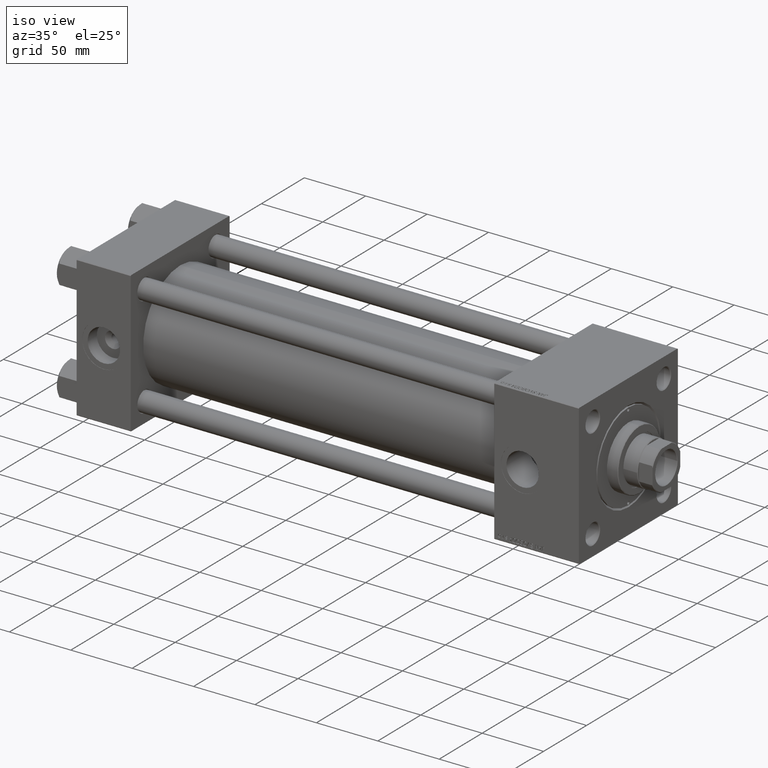
[diagram: clean part render]
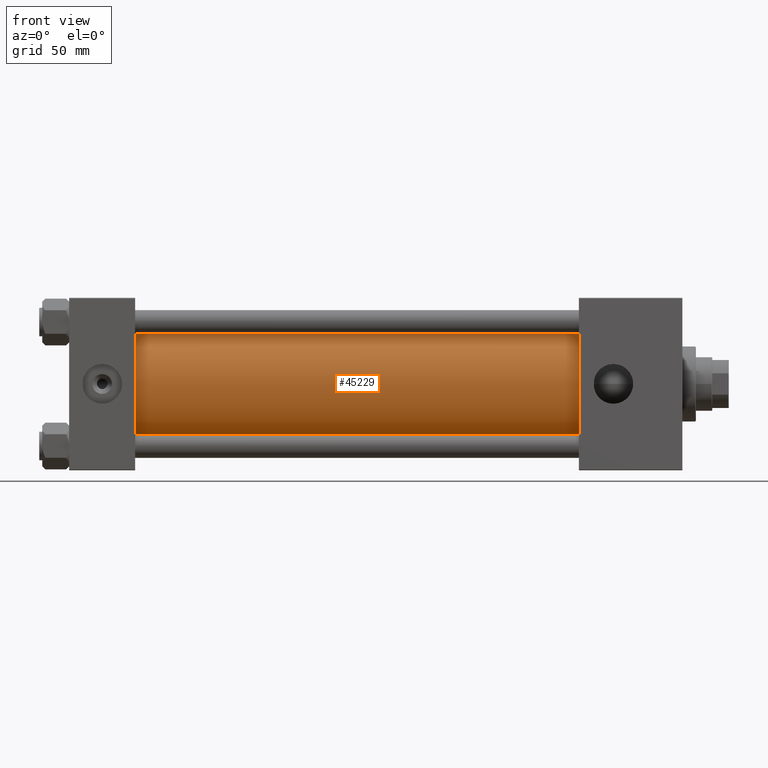
[diagram: tour spotlight — one face highlighted and labeled with its STEP entity id]
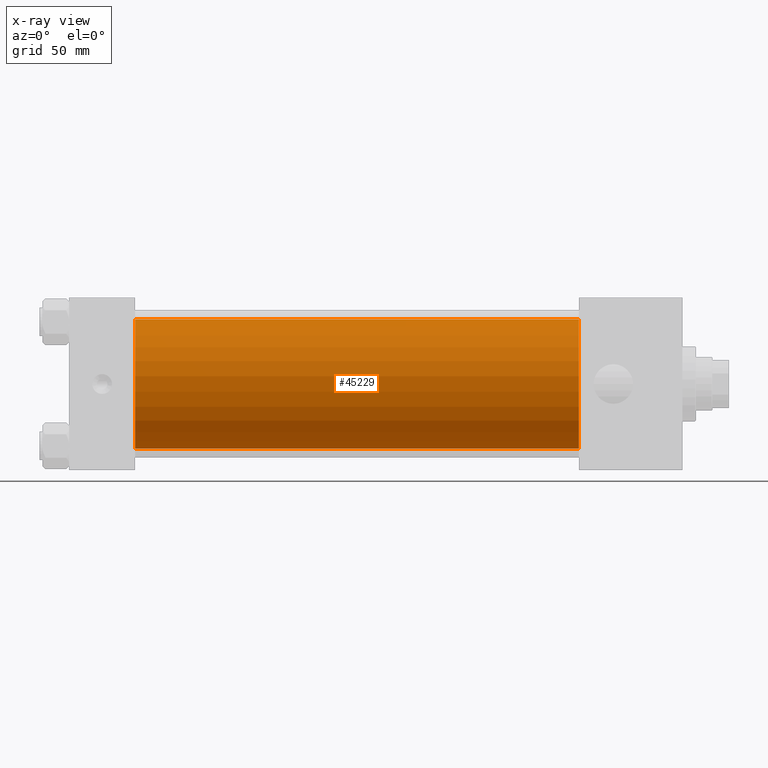
[diagram: x-ray of the same camera — body ghosted, this tour face saturated]
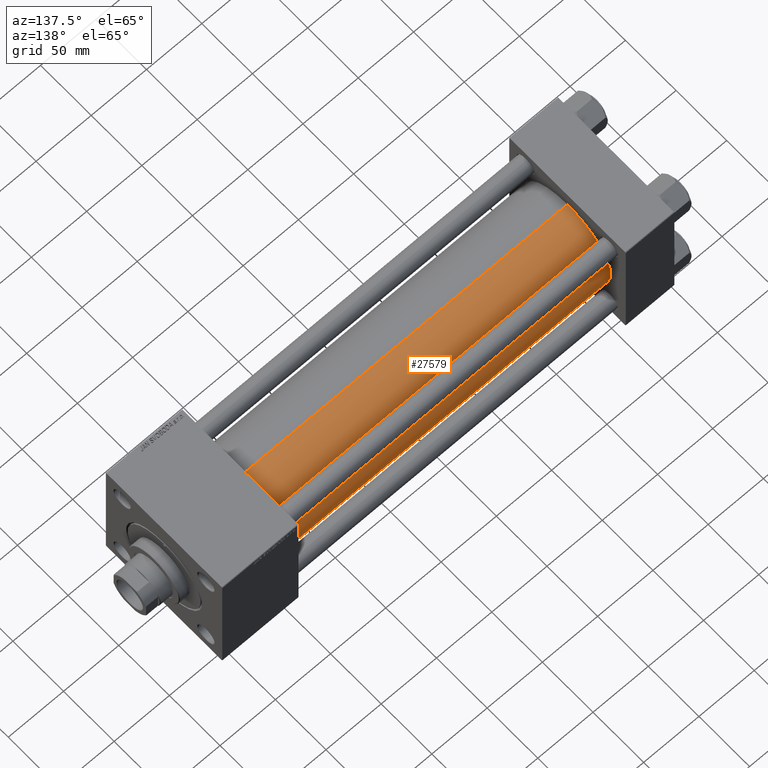
[diagram: tour spotlight — one face highlighted and labeled with its STEP entity id]
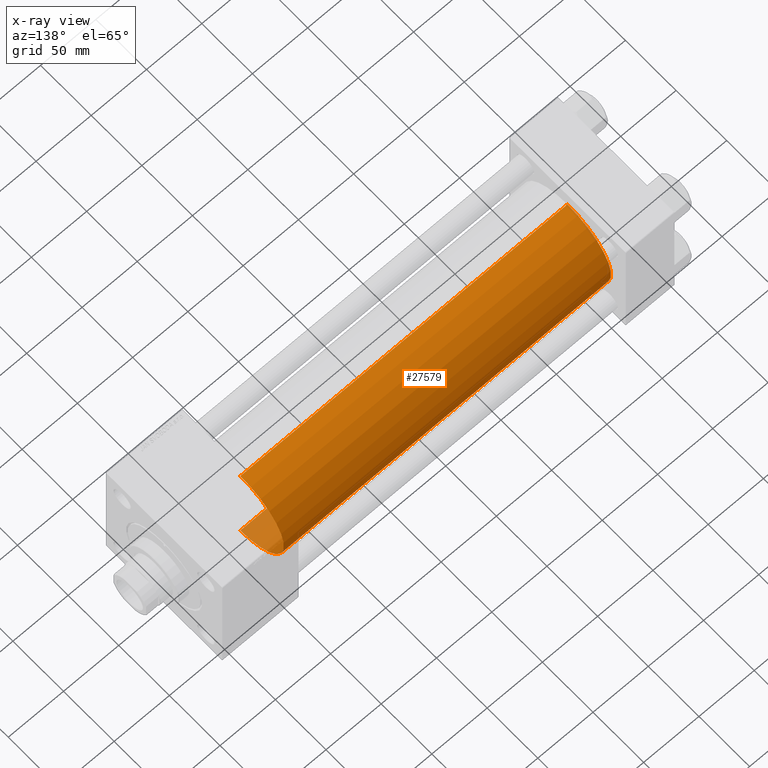
[diagram: x-ray of the same camera — body ghosted, this tour face saturated]
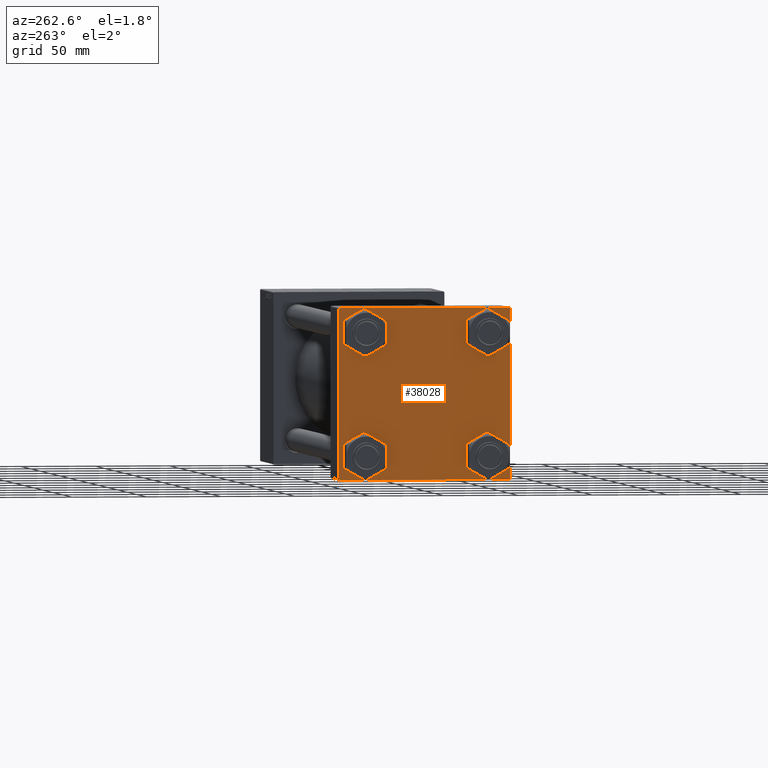
[diagram: tour spotlight — one face highlighted and labeled with its STEP entity id]
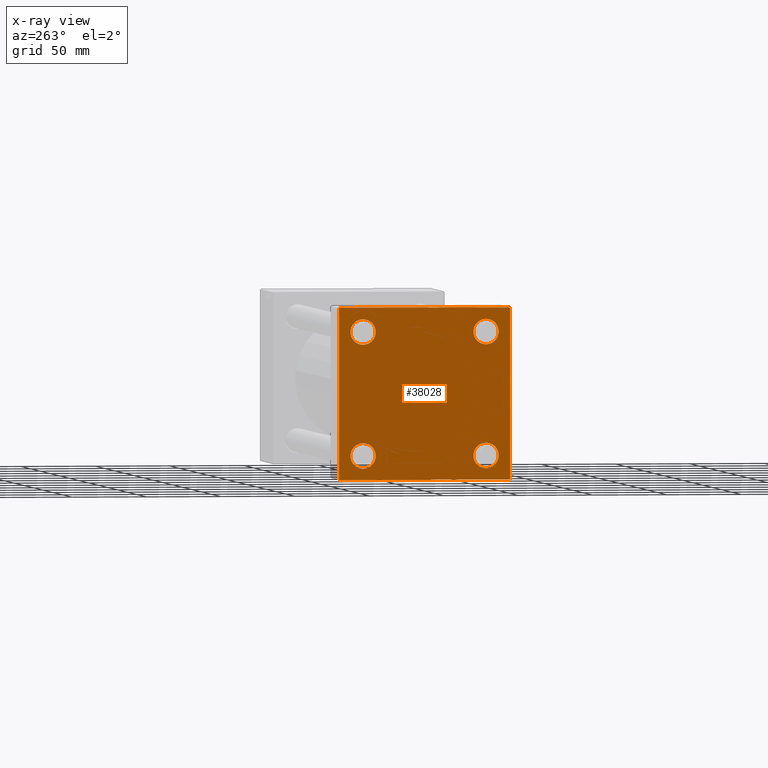
[diagram: x-ray of the same camera — body ghosted, this tour face saturated]
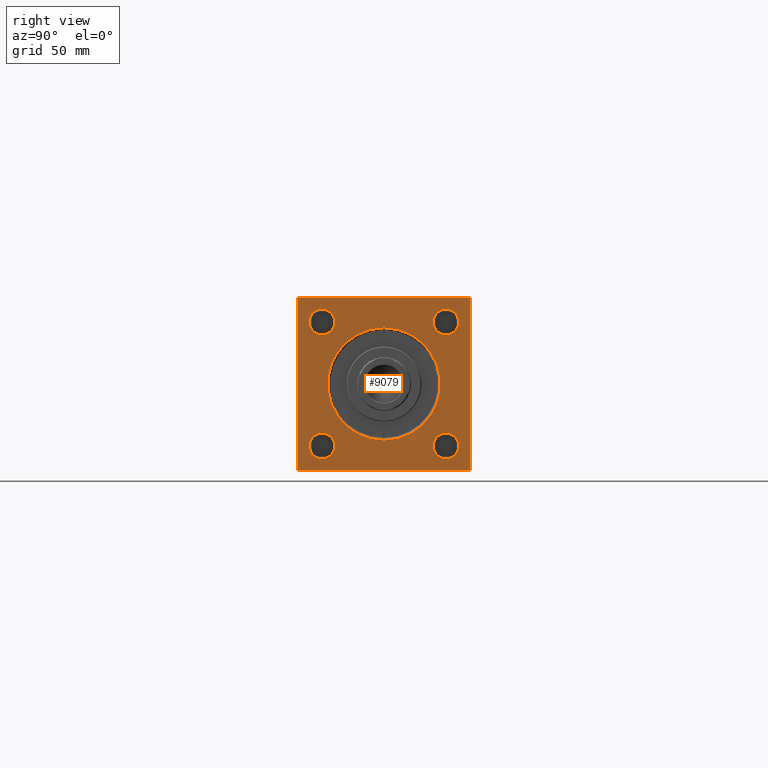
[diagram: tour spotlight — one face highlighted and labeled with its STEP entity id]
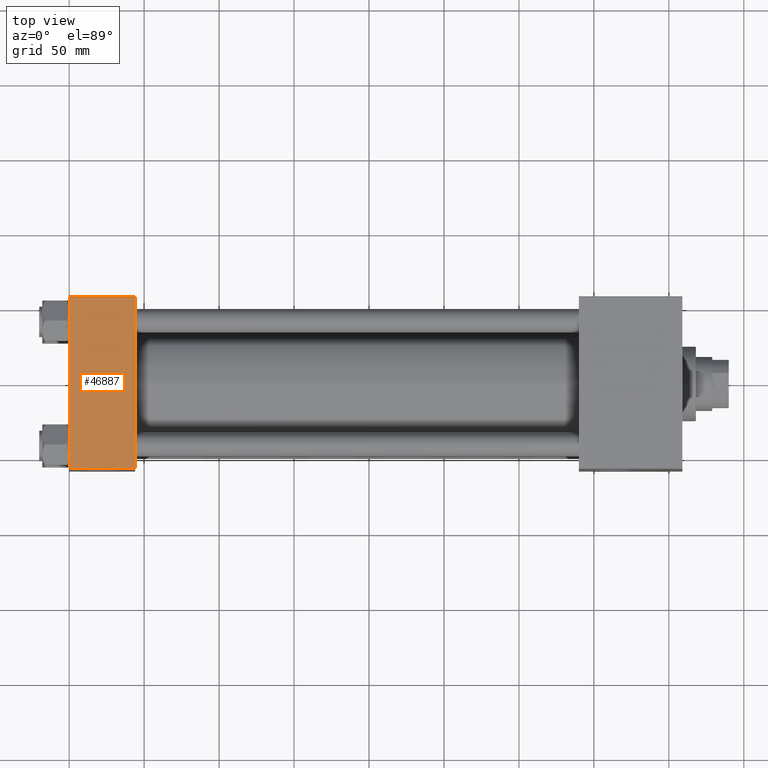
[diagram: tour spotlight — one face highlighted and labeled with its STEP entity id]
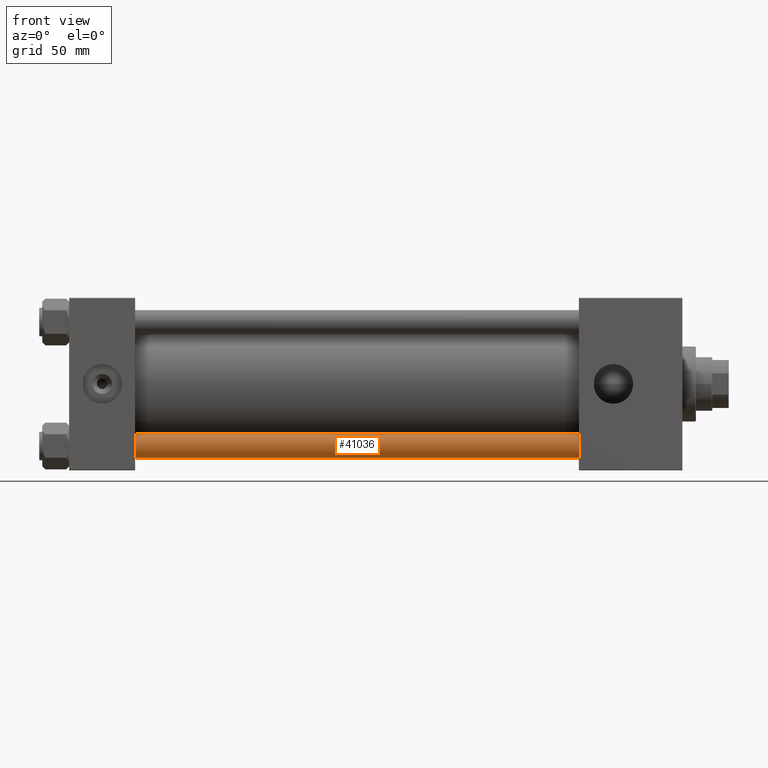
[diagram: tour spotlight — one face highlighted and labeled with its STEP entity id]
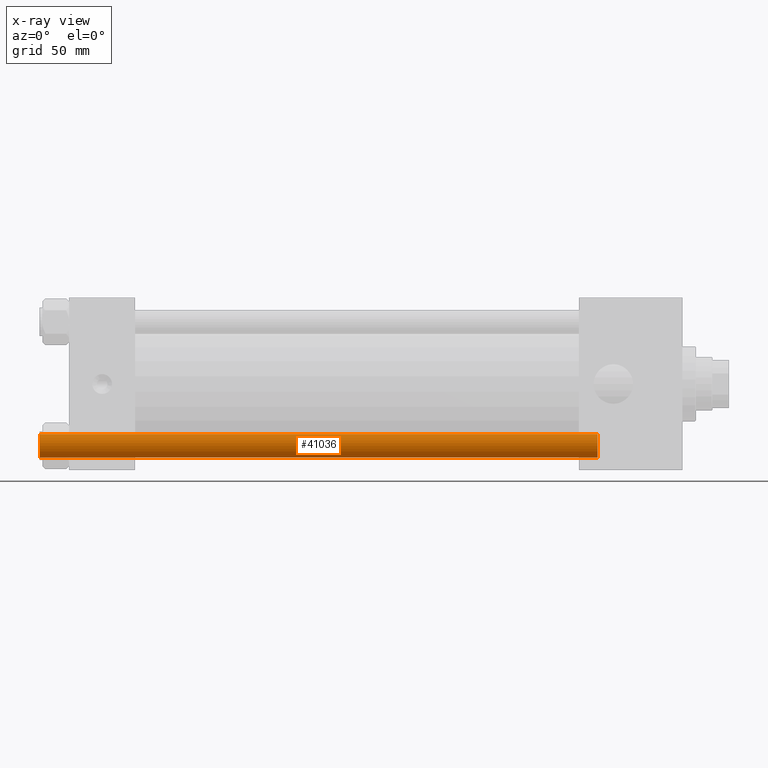
[diagram: x-ray of the same camera — body ghosted, this tour face saturated]
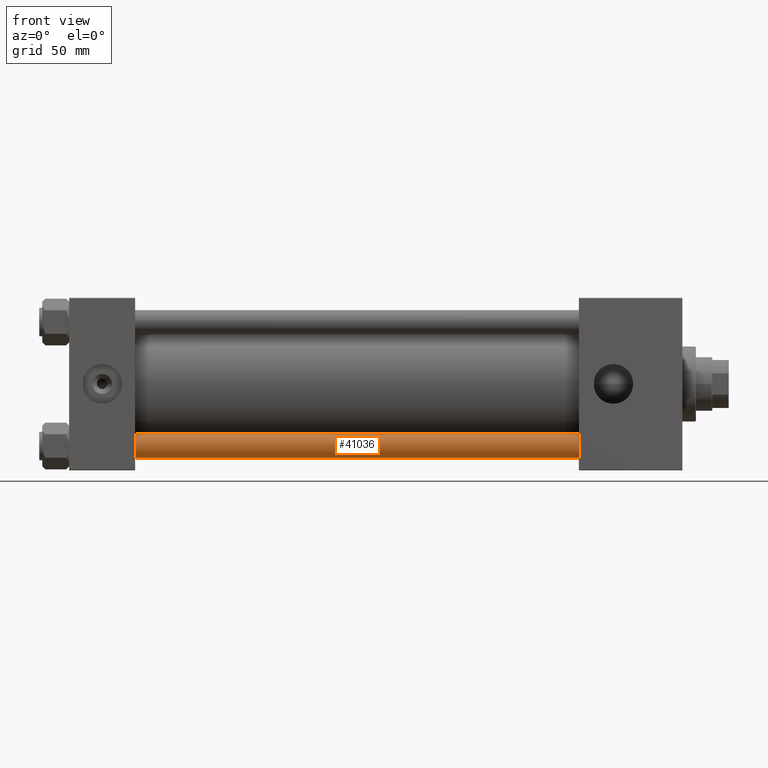
[diagram: tour spotlight — one face highlighted and labeled with its STEP entity id]
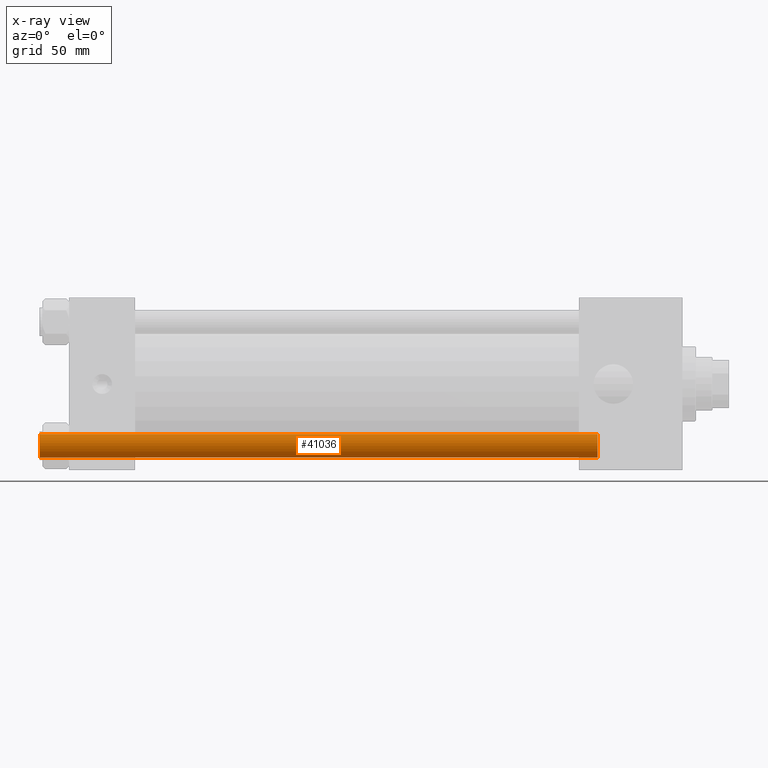
[diagram: x-ray of the same camera — body ghosted, this tour face saturated]
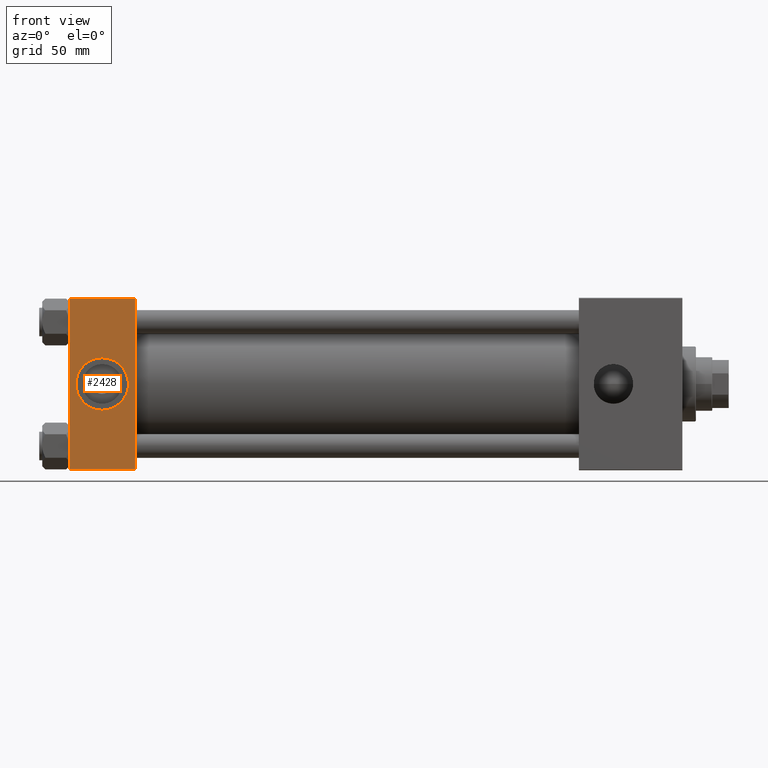
[diagram: tour spotlight — one face highlighted and labeled with its STEP entity id]
A machine part: a face-by-face anatomy tour. The part has 1203 B-rep faces; the first image is the clean iso view, then the 8 largest visible faces are spotlighted one at a time (largest first), each with its STEP entity span.

Face 1 — front view, entity #45229. An x-ray twin of the same camera follows (body ghosted, this face saturated) — the face is partly hidden behind the body. In plain terms, the highlighted cylindrical surface (partial cylindrical patch) has radius 43 mm, axis along (-1, -0, -0).
Definition (entity closure, byte-faithful):
#165 = CARTESIAN_POINT ( 'NONE',  ( 339.9999999999999432, 2.663896022368408223E-15, -43.00000000000000000 ) ) ;
#1318 = VERTEX_POINT ( 'NONE', #48997 ) ;
#4110 = VERTEX_POINT ( 'NONE', #30491 ) ;
#6814 = CYLINDRICAL_SURFACE ( 'NONE', #19328, 43.00000000000000000 ) ;
#7462 = DIRECTION ( 'NONE',  ( 1.000000000000000000, 0.000000000000000000, 0.000000000000000000 ) ) ;
#7582 = VECTOR ( 'NONE', #16255, 1000.000000000000000 ) ;
#7586 = CARTESIAN_POINT ( 'NONE',  ( 43.99999999999998579, -2.602085213965210642E-15, 0.000000000000000000 ) ) ;
#8390 = ORIENTED_EDGE ( 'NONE', *, *, #10181, .F. ) ;
#10181 = EDGE_CURVE ( 'NONE', #19785, #17104, #12435, .T. ) ;
#10626 = AXIS2_PLACEMENT_3D ( 'NONE', #7586, #38384, #19871 ) ;
#11162 = DIRECTION ( 'NONE',  ( -1.000000000000000000, -0.000000000000000000, -0.000000000000000000 ) ) ;
#12132 = CIRCLE ( 'NONE', #40846, 43.00000000000000000 ) ;
#12435 = LINE ( 'NONE', #25003, #7582 ) ;
#16255 = DIRECTION ( 'NONE',  ( -1.000000000000000000, -0.000000000000000000, -0.000000000000000000 ) ) ;
#17104 = VERTEX_POINT ( 'NONE', #48649 ) ;
#18205 = EDGE_CURVE ( 'NONE', #1318, #19785, #12132, .T. ) ;
#19328 = AXIS2_PLACEMENT_3D ( 'NONE', #49962, #11162, #42507 ) ;
#19785 = VERTEX_POINT ( 'NONE', #165 ) ;
#19871 = DIRECTION ( 'NONE',  ( 0.000000000000000000, 0.000000000000000000, 1.000000000000000000 ) ) ;
#20932 = EDGE_LOOP ( 'NONE', ( #8390, #24230, #32018, #36938 ) ) ;
#23121 = DIRECTION ( 'NONE',  ( 0.000000000000000000, 0.000000000000000000, -1.000000000000000000 ) ) ;
#24230 = ORIENTED_EDGE ( 'NONE', *, *, #18205, .F. ) ;
#24322 = EDGE_CURVE ( 'NONE', #4110, #17104, #32774, .T. ) ;
#25003 = CARTESIAN_POINT ( 'NONE',  ( 339.9999999999999432, 2.663896022368408223E-15, -43.00000000000000000 ) ) ;
#26542 = EDGE_CURVE ( 'NONE', #1318, #4110, #40776, .T. ) ;
#30491 = CARTESIAN_POINT ( 'NONE',  ( 43.99999999999998579, -2.602085213965210642E-15, 43.00000000000000000 ) ) ;
#32018 = ORIENTED_EDGE ( 'NONE', *, *, #26542, .T. ) ;
#32774 = CIRCLE ( 'NONE', #10626, 43.00000000000000000 ) ;
#34762 = FACE_OUTER_BOUND ( 'NONE', #20932, .T. ) ;
#36938 = ORIENTED_EDGE ( 'NONE', *, *, #24322, .T. ) ;
#38384 = DIRECTION ( 'NONE',  ( 1.000000000000000000, -0.000000000000000000, 0.000000000000000000 ) ) ;
#40776 = LINE ( 'NONE', #48250, #44324 ) ;
#40846 = AXIS2_PLACEMENT_3D ( 'NONE', #42650, #7462, #23121 ) ;
#42507 = DIRECTION ( 'NONE',  ( 0.000000000000000000, 0.000000000000000000, 1.000000000000000000 ) ) ;
#42650 = CARTESIAN_POINT ( 'NONE',  ( 339.9999999999999432, -2.602085213965210642E-15, 0.000000000000000000 ) ) ;
#44324 = VECTOR ( 'NONE', #44868, 1000.000000000000000 ) ;
#44868 = DIRECTION ( 'NONE',  ( -1.000000000000000000, -0.000000000000000000, -0.000000000000000000 ) ) ;
#45229 = ADVANCED_FACE ( 'NONE', ( #34762 ), #6814, .T. ) ;
#48250 = CARTESIAN_POINT ( 'NONE',  ( 339.9999999999999432, -2.602085213965210642E-15, 43.00000000000000000 ) ) ;
#48649 = CARTESIAN_POINT ( 'NONE',  ( 43.99999999999998579, 2.663896022368408223E-15, -43.00000000000000000 ) ) ;
#48997 = CARTESIAN_POINT ( 'NONE',  ( 339.9999999999999432, -2.602085213965210642E-15, 43.00000000000000000 ) ) ;
#49962 = CARTESIAN_POINT ( 'NONE',  ( 339.9999999999999432, -2.602085213965210642E-15, 0.000000000000000000 ) ) ;

Face 2 — auxiliary view, entity #27579. An x-ray twin of the same camera follows (body ghosted, this face saturated) — the face is partly hidden behind the body. In plain terms, the highlighted cylindrical surface (partial cylindrical patch) has radius 43 mm, axis along (-1, -0, -0).
Definition (entity closure, byte-faithful):
#165 = CARTESIAN_POINT ( 'NONE',  ( 339.9999999999999432, 2.663896022368408223E-15, -43.00000000000000000 ) ) ;
#1318 = VERTEX_POINT ( 'NONE', #48997 ) ;
#4110 = VERTEX_POINT ( 'NONE', #30491 ) ;
#4866 = DIRECTION ( 'NONE',  ( -1.000000000000000000, -0.000000000000000000, -0.000000000000000000 ) ) ;
#5246 = AXIS2_PLACEMENT_3D ( 'NONE', #22894, #34417, #10562 ) ;
#7582 = VECTOR ( 'NONE', #16255, 1000.000000000000000 ) ;
#8393 = EDGE_CURVE ( 'NONE', #17104, #4110, #28017, .T. ) ;
#9121 = AXIS2_PLACEMENT_3D ( 'NONE', #49310, #10507, #26436 ) ;
#10181 = EDGE_CURVE ( 'NONE', #19785, #17104, #12435, .T. ) ;
#10507 = DIRECTION ( 'NONE',  ( 1.000000000000000000, -0.000000000000000000, 0.000000000000000000 ) ) ;
#10562 = DIRECTION ( 'NONE',  ( 0.000000000000000000, 0.000000000000000000, -1.000000000000000000 ) ) ;
#12435 = LINE ( 'NONE', #25003, #7582 ) ;
#13632 = ORIENTED_EDGE ( 'NONE', *, *, #8393, .T. ) ;
#16255 = DIRECTION ( 'NONE',  ( -1.000000000000000000, -0.000000000000000000, -0.000000000000000000 ) ) ;
#17104 = VERTEX_POINT ( 'NONE', #48649 ) ;
#18331 = CIRCLE ( 'NONE', #5246, 43.00000000000000000 ) ;
#19785 = VERTEX_POINT ( 'NONE', #165 ) ;
#20244 = CYLINDRICAL_SURFACE ( 'NONE', #33664, 43.00000000000000000 ) ;
#22894 = CARTESIAN_POINT ( 'NONE',  ( 339.9999999999999432, -2.602085213965210642E-15, 0.000000000000000000 ) ) ;
#24377 = CARTESIAN_POINT ( 'NONE',  ( 339.9999999999999432, -2.602085213965210642E-15, 0.000000000000000000 ) ) ;
#25003 = CARTESIAN_POINT ( 'NONE',  ( 339.9999999999999432, 2.663896022368408223E-15, -43.00000000000000000 ) ) ;
#25732 = ORIENTED_EDGE ( 'NONE', *, *, #10181, .T. ) ;
#26436 = DIRECTION ( 'NONE',  ( 0.000000000000000000, 0.000000000000000000, 1.000000000000000000 ) ) ;
#26542 = EDGE_CURVE ( 'NONE', #1318, #4110, #40776, .T. ) ;
#27579 = ADVANCED_FACE ( 'NONE', ( #28007 ), #20244, .T. ) ;
#28007 = FACE_OUTER_BOUND ( 'NONE', #43210, .T. ) ;
#28017 = CIRCLE ( 'NONE', #9121, 43.00000000000000000 ) ;
#30366 = ORIENTED_EDGE ( 'NONE', *, *, #26542, .F. ) ;
#30491 = CARTESIAN_POINT ( 'NONE',  ( 43.99999999999998579, -2.602085213965210642E-15, 43.00000000000000000 ) ) ;
#33664 = AXIS2_PLACEMENT_3D ( 'NONE', #24377, #4866, #43648 ) ;
#34417 = DIRECTION ( 'NONE',  ( 1.000000000000000000, 0.000000000000000000, 0.000000000000000000 ) ) ;
#38596 = EDGE_CURVE ( 'NONE', #19785, #1318, #18331, .T. ) ;
#40776 = LINE ( 'NONE', #48250, #44324 ) ;
#43210 = EDGE_LOOP ( 'NONE', ( #48096, #25732, #13632, #30366 ) ) ;
#43648 = DIRECTION ( 'NONE',  ( 0.000000000000000000, 0.000000000000000000, 1.000000000000000000 ) ) ;
#44324 = VECTOR ( 'NONE', #44868, 1000.000000000000000 ) ;
#44868 = DIRECTION ( 'NONE',  ( -1.000000000000000000, -0.000000000000000000, -0.000000000000000000 ) ) ;
#48096 = ORIENTED_EDGE ( 'NONE', *, *, #38596, .F. ) ;
#48250 = CARTESIAN_POINT ( 'NONE',  ( 339.9999999999999432, -2.602085213965210642E-15, 43.00000000000000000 ) ) ;
#48649 = CARTESIAN_POINT ( 'NONE',  ( 43.99999999999998579, 2.663896022368408223E-15, -43.00000000000000000 ) ) ;
#48997 = CARTESIAN_POINT ( 'NONE',  ( 339.9999999999999432, -2.602085213965210642E-15, 43.00000000000000000 ) ) ;
#49310 = CARTESIAN_POINT ( 'NONE',  ( 43.99999999999998579, -2.602085213965210642E-15, 0.000000000000000000 ) ) ;

Face 3 — auxiliary view, entity #38028. An x-ray twin of the same camera follows (body ghosted, this face saturated) — the face is partly hidden behind the body. In plain terms, the highlighted planar face has unit normal (-1, 0, 0).
Definition (entity closure, byte-faithful):
#48 = CARTESIAN_POINT ( 'NONE',  ( 0.000000000000000000, -41.34999999999998721, -49.85000000000000853 ) ) ;
#898 = ORIENTED_EDGE ( 'NONE', *, *, #9717, .T. ) ;
#1109 = VERTEX_POINT ( 'NONE', #42112 ) ;
#1740 = EDGE_LOOP ( 'NONE', ( #49243, #18789 ) ) ;
#1925 = FACE_BOUND ( 'NONE', #6155, .T. ) ;
#2551 = VECTOR ( 'NONE', #8814, 1000.000000000000114 ) ;
#3646 = EDGE_LOOP ( 'NONE', ( #26246, #34174 ) ) ;
#3870 = VECTOR ( 'NONE', #39197, 1000.000000000000114 ) ;
#3938 = LINE ( 'NONE', #15249, #35849 ) ;
#5674 = VERTEX_POINT ( 'NONE', #18415 ) ;
#6155 = EDGE_LOOP ( 'NONE', ( #35816, #898 ) ) ;
#6247 = CARTESIAN_POINT ( 'NONE',  ( 0.000000000000000000, -41.34999999999998721, -32.85000000000001563 ) ) ;
#6564 = VERTEX_POINT ( 'NONE', #38716 ) ;
#7039 = ORIENTED_EDGE ( 'NONE', *, *, #43502, .F. ) ;
#7187 = DIRECTION ( 'NONE',  ( 0.000000000000000000, -1.000000000000000000, -1.206764157201257045E-16 ) ) ;
#7580 = EDGE_CURVE ( 'NONE', #36434, #25791, #36137, .T. ) ;
#8036 = EDGE_CURVE ( 'NONE', #9738, #5674, #31446, .T. ) ;
#8374 = EDGE_CURVE ( 'NONE', #49345, #20031, #49061, .T. ) ;
#8545 = CARTESIAN_POINT ( 'NONE',  ( 0.000000000000000000, 41.34999999999999432, -32.85000000000000853 ) ) ;
#8791 = EDGE_CURVE ( 'NONE', #1109, #46285, #42810, .T. ) ;
#8814 = DIRECTION ( 'NONE',  ( 0.000000000000000000, -0.7071067811865474617, 0.7071067811865474617 ) ) ;
#8951 = AXIS2_PLACEMENT_3D ( 'NONE', #48938, #25545, #45548 ) ;
#9167 = ORIENTED_EDGE ( 'NONE', *, *, #7580, .T. ) ;
#9210 = CARTESIAN_POINT ( 'NONE',  ( 0.000000000000000000, 41.34999999999999432, -41.35000000000000142 ) ) ;
#9419 = ORIENTED_EDGE ( 'NONE', *, *, #49382, .T. ) ;
#9717 = EDGE_CURVE ( 'NONE', #42148, #31229, #37860, .T. ) ;
#9738 = VERTEX_POINT ( 'NONE', #14050 ) ;
#10260 = LINE ( 'NONE', #14873, #12360 ) ;
#10383 = ORIENTED_EDGE ( 'NONE', *, *, #8036, .T. ) ;
#10500 = VERTEX_POINT ( 'NONE', #30839 ) ;
#10702 = DIRECTION ( 'NONE',  ( 0.000000000000000000, 0.000000000000000000, 1.000000000000000000 ) ) ;
#11814 = CARTESIAN_POINT ( 'NONE',  ( 0.000000000000000000, 57.00000000000002132, -57.49999999999999289 ) ) ;
#12009 = DIRECTION ( 'NONE',  ( 1.000000000000000000, -0.000000000000000000, 0.000000000000000000 ) ) ;
#12290 = LINE ( 'NONE', #20729, #22602 ) ;
#12360 = VECTOR ( 'NONE', #7187, 1000.000000000000000 ) ;
#13471 = CARTESIAN_POINT ( 'NONE',  ( 0.000000000000000000, 0.000000000000000000, 0.000000000000000000 ) ) ;
#14050 = CARTESIAN_POINT ( 'NONE',  ( 0.000000000000000000, -57.00000000000000711, -57.50000000000000711 ) ) ;
#14353 = DIRECTION ( 'NONE',  ( 0.000000000000000000, 0.000000000000000000, 1.000000000000000000 ) ) ;
#14603 = CARTESIAN_POINT ( 'NONE',  ( 0.000000000000000000, 57.25000000000081712, -57.24999999999922551 ) ) ;
#14806 = DIRECTION ( 'NONE',  ( 1.000000000000000000, -0.000000000000000000, 0.000000000000000000 ) ) ;
#14873 = CARTESIAN_POINT ( 'NONE',  ( 0.000000000000000000, 57.49999999999999289, 57.50000000000000711 ) ) ;
#15249 = CARTESIAN_POINT ( 'NONE',  ( 0.000000000000000000, 57.49999999999999289, 57.50000000000000711 ) ) ;
#15570 = ORIENTED_EDGE ( 'NONE', *, *, #8374, .T. ) ;
#15891 = EDGE_CURVE ( 'NONE', #24785, #9738, #43229, .T. ) ;
#16037 = EDGE_CURVE ( 'NONE', #20031, #6564, #3938, .T. ) ;
#16902 = AXIS2_PLACEMENT_3D ( 'NONE', #42122, #18714, #18972 ) ;
#18291 = CARTESIAN_POINT ( 'NONE',  ( 0.000000000000000000, 41.34999999999999432, 49.85000000000000142 ) ) ;
#18398 = CARTESIAN_POINT ( 'NONE',  ( 0.000000000000000000, -57.50000000000000711, 57.00000000000000711 ) ) ;
#18415 = CARTESIAN_POINT ( 'NONE',  ( 0.000000000000000000, -57.50000000000000711, -57.00000000000000711 ) ) ;
#18714 = DIRECTION ( 'NONE',  ( 1.000000000000000000, -0.000000000000000000, 0.000000000000000000 ) ) ;
#18789 = ORIENTED_EDGE ( 'NONE', *, *, #46591, .T. ) ;
#18972 = DIRECTION ( 'NONE',  ( 0.000000000000000000, 0.000000000000000000, 1.000000000000000000 ) ) ;
#19336 = CARTESIAN_POINT ( 'NONE',  ( 0.000000000000000000, 57.49999999999999289, -57.49999999999999289 ) ) ;
#19843 = CARTESIAN_POINT ( 'NONE',  ( 0.000000000000000000, 57.49999999999999289, 57.00000000000003553 ) ) ;
#19850 = DIRECTION ( 'NONE',  ( 1.000000000000000000, -0.000000000000000000, 0.000000000000000000 ) ) ;
#19963 = EDGE_CURVE ( 'NONE', #25791, #36434, #40116, .T. ) ;
#20031 = VERTEX_POINT ( 'NONE', #19843 ) ;
#20087 = CARTESIAN_POINT ( 'NONE',  ( 0.000000000000000000, -57.25000000000000711, -57.25000000000000711 ) ) ;
#20729 = CARTESIAN_POINT ( 'NONE',  ( 0.000000000000000000, -57.50000000000000711, 57.49999999999999289 ) ) ;
#21117 = EDGE_CURVE ( 'NONE', #31229, #42148, #40152, .T. ) ;
#22284 = AXIS2_PLACEMENT_3D ( 'NONE', #9210, #37157, #48513 ) ;
#22560 = AXIS2_PLACEMENT_3D ( 'NONE', #31547, #12009, #31793 ) ;
#22602 = VECTOR ( 'NONE', #32316, 1000.000000000000000 ) ;
#23187 = VERTEX_POINT ( 'NONE', #6247 ) ;
#23449 = ORIENTED_EDGE ( 'NONE', *, *, #16037, .T. ) ;
#23539 = CARTESIAN_POINT ( 'NONE',  ( 0.000000000000000000, 57.00000000000000711, 57.50000000000000711 ) ) ;
#23849 = AXIS2_PLACEMENT_3D ( 'NONE', #49559, #45411, #29791 ) ;
#24296 = AXIS2_PLACEMENT_3D ( 'NONE', #49569, #33127, #14353 ) ;
#24565 = AXIS2_PLACEMENT_3D ( 'NONE', #38626, #19850, #39135 ) ;
#24785 = VERTEX_POINT ( 'NONE', #11814 ) ;
#25545 = DIRECTION ( 'NONE',  ( 1.000000000000000000, -0.000000000000000000, 0.000000000000000000 ) ) ;
#25675 = AXIS2_PLACEMENT_3D ( 'NONE', #13471, #45527, #33966 ) ;
#25791 = VERTEX_POINT ( 'NONE', #44620 ) ;
#26020 = FACE_OUTER_BOUND ( 'NONE', #45504, .T. ) ;
#26246 = ORIENTED_EDGE ( 'NONE', *, *, #46649, .T. ) ;
#26347 = EDGE_CURVE ( 'NONE', #6564, #24785, #45416, .T. ) ;
#26927 = ORIENTED_EDGE ( 'NONE', *, *, #15891, .T. ) ;
#27067 = CARTESIAN_POINT ( 'NONE',  ( 0.000000000000000000, 41.34999999999999432, -49.85000000000000142 ) ) ;
#27125 = EDGE_CURVE ( 'NONE', #49345, #10500, #10260, .T. ) ;
#28331 = CARTESIAN_POINT ( 'NONE',  ( 0.000000000000000000, -41.34999999999998721, 49.85000000000000853 ) ) ;
#29648 = PLANE ( 'NONE',  #25675 ) ;
#29791 = DIRECTION ( 'NONE',  ( 0.000000000000000000, 0.000000000000000000, 1.000000000000000000 ) ) ;
#30761 = CARTESIAN_POINT ( 'NONE',  ( -0.000000000000000000, -57.25000000000081712, 57.24999999999922551 ) ) ;
#30839 = CARTESIAN_POINT ( 'NONE',  ( 0.000000000000000000, -57.00000000000003553, 57.49999999999999289 ) ) ;
#30935 = DIRECTION ( 'NONE',  ( 0.000000000000000000, 0.000000000000000000, -1.000000000000000000 ) ) ;
#31229 = VERTEX_POINT ( 'NONE', #8545 ) ;
#31446 = LINE ( 'NONE', #20087, #2551 ) ;
#31547 = CARTESIAN_POINT ( 'NONE',  ( 0.000000000000000000, -41.34999999999998721, -41.35000000000000853 ) ) ;
#31723 = CIRCLE ( 'NONE', #16902, 8.499999999999992895 ) ;
#31793 = DIRECTION ( 'NONE',  ( 0.000000000000000000, 0.000000000000000000, 1.000000000000000000 ) ) ;
#32316 = DIRECTION ( 'NONE',  ( 0.000000000000000000, 0.000000000000000000, -1.000000000000000000 ) ) ;
#32458 = EDGE_LOOP ( 'NONE', ( #9167, #42345 ) ) ;
#33127 = DIRECTION ( 'NONE',  ( 1.000000000000000000, -0.000000000000000000, 0.000000000000000000 ) ) ;
#33966 = DIRECTION ( 'NONE',  ( -0.000000000000000000, 0.000000000000000000, 1.000000000000000000 ) ) ;
#34174 = ORIENTED_EDGE ( 'NONE', *, *, #8791, .T. ) ;
#34429 = VECTOR ( 'NONE', #42360, 1000.000000000000114 ) ;
#35816 = ORIENTED_EDGE ( 'NONE', *, *, #21117, .T. ) ;
#35849 = VECTOR ( 'NONE', #30935, 1000.000000000000000 ) ;
#36137 = CIRCLE ( 'NONE', #23849, 8.499999999999992895 ) ;
#36434 = VERTEX_POINT ( 'NONE', #28331 ) ;
#37128 = VECTOR ( 'NONE', #39125, 1000.000000000000000 ) ;
#37157 = DIRECTION ( 'NONE',  ( 1.000000000000000000, -0.000000000000000000, 0.000000000000000000 ) ) ;
#37316 = FACE_BOUND ( 'NONE', #3646, .T. ) ;
#37860 = CIRCLE ( 'NONE', #22284, 8.499999999999992895 ) ;
#38028 = ADVANCED_FACE ( 'NONE', ( #44042, #45775, #1925, #37316, #26020 ), #29648, .T. ) ;
#38626 = CARTESIAN_POINT ( 'NONE',  ( 0.000000000000000000, 41.34999999999999432, -41.35000000000000142 ) ) ;
#38716 = CARTESIAN_POINT ( 'NONE',  ( 0.000000000000000000, 57.49999999999999289, -57.00000000000000711 ) ) ;
#39066 = CIRCLE ( 'NONE', #24296, 8.499999999999992895 ) ;
#39125 = DIRECTION ( 'NONE',  ( 0.000000000000000000, -1.000000000000000000, -1.206764157201257045E-16 ) ) ;
#39135 = DIRECTION ( 'NONE',  ( 0.000000000000000000, 0.000000000000000000, 1.000000000000000000 ) ) ;
#39197 = DIRECTION ( 'NONE',  ( -0.000000000000000000, 0.7071067811865376918, 0.7071067811865573427 ) ) ;
#39455 = LINE ( 'NONE', #30761, #3870 ) ;
#39503 = AXIS2_PLACEMENT_3D ( 'NONE', #45862, #14806, #10702 ) ;
#40116 = CIRCLE ( 'NONE', #8951, 8.499999999999992895 ) ;
#40152 = CIRCLE ( 'NONE', #24565, 8.499999999999992895 ) ;
#40361 = VERTEX_POINT ( 'NONE', #48 ) ;
#40745 = VERTEX_POINT ( 'NONE', #18398 ) ;
#41706 = EDGE_CURVE ( 'NONE', #23187, #40361, #45485, .T. ) ;
#41840 = DIRECTION ( 'NONE',  ( 0.000000000000000000, 0.7071067811865573427, -0.7071067811865376918 ) ) ;
#42072 = ORIENTED_EDGE ( 'NONE', *, *, #26347, .T. ) ;
#42112 = CARTESIAN_POINT ( 'NONE',  ( 0.000000000000000000, 41.34999999999999432, 32.85000000000000853 ) ) ;
#42122 = CARTESIAN_POINT ( 'NONE',  ( 0.000000000000000000, 41.34999999999999432, 41.35000000000000142 ) ) ;
#42148 = VERTEX_POINT ( 'NONE', #27067 ) ;
#42345 = ORIENTED_EDGE ( 'NONE', *, *, #19963, .T. ) ;
#42360 = DIRECTION ( 'NONE',  ( -0.000000000000000000, -0.7071067811865376918, -0.7071067811865573427 ) ) ;
#42366 = CARTESIAN_POINT ( 'NONE',  ( 0.000000000000000000, 57.24999999999922551, 57.25000000000081712 ) ) ;
#42653 = ORIENTED_EDGE ( 'NONE', *, *, #27125, .F. ) ;
#42810 = CIRCLE ( 'NONE', #39503, 8.499999999999992895 ) ;
#43229 = LINE ( 'NONE', #19336, #37128 ) ;
#43502 = EDGE_CURVE ( 'NONE', #40745, #5674, #12290, .T. ) ;
#44042 = FACE_BOUND ( 'NONE', #32458, .T. ) ;
#44620 = CARTESIAN_POINT ( 'NONE',  ( 0.000000000000000000, -41.34999999999998721, 32.85000000000001563 ) ) ;
#45411 = DIRECTION ( 'NONE',  ( 1.000000000000000000, -0.000000000000000000, 0.000000000000000000 ) ) ;
#45416 = LINE ( 'NONE', #14603, #34429 ) ;
#45485 = CIRCLE ( 'NONE', #22560, 8.499999999999992895 ) ;
#45504 = EDGE_LOOP ( 'NONE', ( #23449, #42072, #26927, #10383, #7039, #9419, #42653, #15570 ) ) ;
#45527 = DIRECTION ( 'NONE',  ( -1.000000000000000000, 0.000000000000000000, -0.000000000000000000 ) ) ;
#45548 = DIRECTION ( 'NONE',  ( 0.000000000000000000, 0.000000000000000000, 1.000000000000000000 ) ) ;
#45775 = FACE_BOUND ( 'NONE', #1740, .T. ) ;
#45862 = CARTESIAN_POINT ( 'NONE',  ( 0.000000000000000000, 41.34999999999999432, 41.35000000000000142 ) ) ;
#46285 = VERTEX_POINT ( 'NONE', #18291 ) ;
#46591 = EDGE_CURVE ( 'NONE', #40361, #23187, #39066, .T. ) ;
#46649 = EDGE_CURVE ( 'NONE', #46285, #1109, #31723, .T. ) ;
#47691 = VECTOR ( 'NONE', #41840, 1000.000000000000114 ) ;
#48513 = DIRECTION ( 'NONE',  ( 0.000000000000000000, 0.000000000000000000, 1.000000000000000000 ) ) ;
#48938 = CARTESIAN_POINT ( 'NONE',  ( 0.000000000000000000, -41.34999999999998721, 41.35000000000000853 ) ) ;
#49061 = LINE ( 'NONE', #42366, #47691 ) ;
#49243 = ORIENTED_EDGE ( 'NONE', *, *, #41706, .T. ) ;
#49345 = VERTEX_POINT ( 'NONE', #23539 ) ;
#49382 = EDGE_CURVE ( 'NONE', #40745, #10500, #39455, .T. ) ;
#49559 = CARTESIAN_POINT ( 'NONE',  ( 0.000000000000000000, -41.34999999999998721, 41.35000000000000853 ) ) ;
#49569 = CARTESIAN_POINT ( 'NONE',  ( 0.000000000000000000, -41.34999999999998721, -41.35000000000000853 ) ) ;

Face 4 — right view, entity #9079. In plain terms, the highlighted planar face has unit normal (-1, 0, 0).
Definition (entity closure, byte-faithful):
#731 = AXIS2_PLACEMENT_3D ( 'NONE', #17322, #2183, #32756 ) ;
#1295 = DIRECTION ( 'NONE',  ( 0.000000000000000000, 0.000000000000000000, 1.000000000000000000 ) ) ;
#1385 = DIRECTION ( 'NONE',  ( -1.000000000000000000, 0.000000000000000000, -0.000000000000000000 ) ) ;
#1679 = EDGE_CURVE ( 'NONE', #46254, #11502, #50744, .T. ) ;
#1733 = AXIS2_PLACEMENT_3D ( 'NONE', #24131, #1776, #9228 ) ;
#1776 = DIRECTION ( 'NONE',  ( -1.000000000000000000, 0.000000000000000000, -0.000000000000000000 ) ) ;
#2064 = CARTESIAN_POINT ( 'NONE',  ( 409.0000000000000000, -57.49999999999999289, -57.00000000000003553 ) ) ;
#2183 = DIRECTION ( 'NONE',  ( -1.000000000000000000, 0.000000000000000000, -0.000000000000000000 ) ) ;
#2670 = VECTOR ( 'NONE', #10680, 1000.000000000000000 ) ;
#3432 = DIRECTION ( 'NONE',  ( -1.000000000000000000, 0.000000000000000000, -0.000000000000000000 ) ) ;
#3585 = EDGE_CURVE ( 'NONE', #35332, #37696, #16346, .T. ) ;
#3691 = CIRCLE ( 'NONE', #43060, 8.500000000000007105 ) ;
#4090 = EDGE_LOOP ( 'NONE', ( #18081, #27933 ) ) ;
#4206 = CARTESIAN_POINT ( 'NONE',  ( 409.0000000000000000, 41.34999999999999432, 41.35000000000000142 ) ) ;
#5084 = AXIS2_PLACEMENT_3D ( 'NONE', #47943, #12736, #33010 ) ;
#5598 = EDGE_CURVE ( 'NONE', #50334, #5743, #30395, .T. ) ;
#5619 = AXIS2_PLACEMENT_3D ( 'NONE', #21184, #9406, #24817 ) ;
#5743 = VERTEX_POINT ( 'NONE', #7648 ) ;
#5966 = CIRCLE ( 'NONE', #29762, 8.500000000000007105 ) ;
#6146 = DIRECTION ( 'NONE',  ( -1.000000000000000000, 0.000000000000000000, -0.000000000000000000 ) ) ;
#6475 = VERTEX_POINT ( 'NONE', #9481 ) ;
#6877 = LINE ( 'NONE', #34056, #40476 ) ;
#7285 = CARTESIAN_POINT ( 'NONE',  ( 409.0000000000000000, 41.34999999999999432, 32.84999999999999432 ) ) ;
#7370 = AXIS2_PLACEMENT_3D ( 'NONE', #8038, #11650, #20333 ) ;
#7648 = CARTESIAN_POINT ( 'NONE',  ( 409.0000000000000000, 4.592425496802578311E-15, 37.50000000000003553 ) ) ;
#7861 = CARTESIAN_POINT ( 'NONE',  ( 409.0000000000000000, 0.000000000000000000, 0.000000000000000000 ) ) ;
#8038 = CARTESIAN_POINT ( 'NONE',  ( 409.0000000000000000, -41.34999999999999432, 41.35000000000000142 ) ) ;
#8108 = DIRECTION ( 'NONE',  ( 0.000000000000000000, 0.000000000000000000, 1.000000000000000000 ) ) ;
#8173 = ORIENTED_EDGE ( 'NONE', *, *, #19777, .T. ) ;
#8214 = ORIENTED_EDGE ( 'NONE', *, *, #15144, .T. ) ;
#9079 = ADVANCED_FACE ( 'NONE', ( #16302, #48446, #44064, #16557, #13245, #17323 ), #32261, .F. ) ;
#9101 = CARTESIAN_POINT ( 'NONE',  ( 409.0000000000000000, 41.34999999999999432, 49.85000000000001563 ) ) ;
#9173 = LINE ( 'NONE', #27495, #28131 ) ;
#9228 = DIRECTION ( 'NONE',  ( 0.000000000000000000, 0.000000000000000000, 1.000000000000000000 ) ) ;
#9273 = VERTEX_POINT ( 'NONE', #39585 ) ;
#9406 = DIRECTION ( 'NONE',  ( -1.000000000000000000, 0.000000000000000000, -0.000000000000000000 ) ) ;
#9481 = CARTESIAN_POINT ( 'NONE',  ( 409.0000000000000000, -41.34999999999999432, -32.84999999999999432 ) ) ;
#10339 = LINE ( 'NONE', #14437, #14490 ) ;
#10482 = CARTESIAN_POINT ( 'NONE',  ( 409.0000000000000000, 57.50000000000000000, -57.49999999999996447 ) ) ;
#10680 = DIRECTION ( 'NONE',  ( 0.000000000000000000, 0.000000000000000000, -1.000000000000000000 ) ) ;
#11393 = DIRECTION ( 'NONE',  ( 0.000000000000000000, 0.000000000000000000, 1.000000000000000000 ) ) ;
#11502 = VERTEX_POINT ( 'NONE', #7285 ) ;
#11650 = DIRECTION ( 'NONE',  ( -1.000000000000000000, 0.000000000000000000, -0.000000000000000000 ) ) ;
#11793 = EDGE_CURVE ( 'NONE', #46501, #9273, #9173, .T. ) ;
#12736 = DIRECTION ( 'NONE',  ( -1.000000000000000000, 0.000000000000000000, -0.000000000000000000 ) ) ;
#13077 = CARTESIAN_POINT ( 'NONE',  ( 409.0000000000000000, 57.50000000000000000, 57.50000000000000711 ) ) ;
#13245 = FACE_BOUND ( 'NONE', #16911, .T. ) ;
#13296 = ORIENTED_EDGE ( 'NONE', *, *, #34557, .T. ) ;
#13429 = ORIENTED_EDGE ( 'NONE', *, *, #18275, .F. ) ;
#13530 = ORIENTED_EDGE ( 'NONE', *, *, #19670, .T. ) ;
#13555 = VERTEX_POINT ( 'NONE', #49230 ) ;
#13814 = VECTOR ( 'NONE', #28760, 1000.000000000000000 ) ;
#14040 = CARTESIAN_POINT ( 'NONE',  ( 409.0000000000000000, -57.49999999999999289, 56.99999999999999289 ) ) ;
#14082 = CARTESIAN_POINT ( 'NONE',  ( 409.0000000000000000, -41.34999999999999432, 41.35000000000000142 ) ) ;
#14312 = VERTEX_POINT ( 'NONE', #42921 ) ;
#14437 = CARTESIAN_POINT ( 'NONE',  ( 409.0000000000000000, 56.99999999999994316, 57.50000000000000711 ) ) ;
#14473 = EDGE_CURVE ( 'NONE', #37696, #35332, #5966, .T. ) ;
#14490 = VECTOR ( 'NONE', #29626, 1000.000000000000000 ) ;
#14503 = ORIENTED_EDGE ( 'NONE', *, *, #5598, .T. ) ;
#14519 = LINE ( 'NONE', #30212, #2670 ) ;
#14869 = VECTOR ( 'NONE', #34079, 1000.000000000000000 ) ;
#15144 = EDGE_CURVE ( 'NONE', #26593, #35534, #15797, .T. ) ;
#15146 = ORIENTED_EDGE ( 'NONE', *, *, #14473, .T. ) ;
#15797 = CIRCLE ( 'NONE', #42884, 8.500000000000007105 ) ;
#15956 = AXIS2_PLACEMENT_3D ( 'NONE', #4206, #1385, #43504 ) ;
#16302 = FACE_BOUND ( 'NONE', #4090, .T. ) ;
#16346 = CIRCLE ( 'NONE', #7370, 8.500000000000007105 ) ;
#16557 = FACE_BOUND ( 'NONE', #44675, .T. ) ;
#16911 = EDGE_LOOP ( 'NONE', ( #14503, #8173 ) ) ;
#17154 = DIRECTION ( 'NONE',  ( -1.000000000000000000, 0.000000000000000000, -0.000000000000000000 ) ) ;
#17322 = CARTESIAN_POINT ( 'NONE',  ( 409.0000000000000000, 41.34999999999999432, 41.35000000000000142 ) ) ;
#17323 = FACE_OUTER_BOUND ( 'NONE', #50169, .T. ) ;
#17379 = CARTESIAN_POINT ( 'NONE',  ( 409.0000000000000000, -57.00000000000004263, 57.49999999999999289 ) ) ;
#18081 = ORIENTED_EDGE ( 'NONE', *, *, #41258, .T. ) ;
#18275 = EDGE_CURVE ( 'NONE', #31136, #23066, #24888, .T. ) ;
#19605 = EDGE_CURVE ( 'NONE', #21384, #43722, #20973, .T. ) ;
#19670 = EDGE_CURVE ( 'NONE', #43722, #14312, #50272, .T. ) ;
#19777 = EDGE_CURVE ( 'NONE', #5743, #50334, #47488, .T. ) ;
#20333 = DIRECTION ( 'NONE',  ( 0.000000000000000000, 0.000000000000000000, 1.000000000000000000 ) ) ;
#20973 = LINE ( 'NONE', #36636, #35160 ) ;
#21001 = DIRECTION ( 'NONE',  ( 0.000000000000000000, 0.000000000000000000, 1.000000000000000000 ) ) ;
#21110 = CARTESIAN_POINT ( 'NONE',  ( 409.0000000000000000, 56.99999999999989342, -57.49999999999996447 ) ) ;
#21184 = CARTESIAN_POINT ( 'NONE',  ( 409.0000000000000000, 41.34999999999999432, -41.35000000000000142 ) ) ;
#21314 = EDGE_LOOP ( 'NONE', ( #15146, #44011 ) ) ;
#21384 = VERTEX_POINT ( 'NONE', #29360 ) ;
#21602 = ORIENTED_EDGE ( 'NONE', *, *, #28416, .F. ) ;
#21811 = EDGE_CURVE ( 'NONE', #35534, #26593, #46628, .T. ) ;
#22282 = LINE ( 'NONE', #10482, #14869 ) ;
#22438 = VERTEX_POINT ( 'NONE', #21110 ) ;
#22506 = DIRECTION ( 'NONE',  ( -0.000000000000000000, -0.7071067811865131558, -0.7071067811865818786 ) ) ;
#22521 = DIRECTION ( 'NONE',  ( -0.000000000000000000, 0.7071067811865474617, 0.7071067811865474617 ) ) ;
#22614 = ORIENTED_EDGE ( 'NONE', *, *, #11793, .T. ) ;
#23066 = VERTEX_POINT ( 'NONE', #31709 ) ;
#23397 = DIRECTION ( 'NONE',  ( -1.000000000000000000, 0.000000000000000000, -0.000000000000000000 ) ) ;
#24131 = CARTESIAN_POINT ( 'NONE',  ( 409.0000000000000000, -41.34999999999999432, -41.35000000000000142 ) ) ;
#24634 = CARTESIAN_POINT ( 'NONE',  ( 409.0000000000000000, 0.000000000000000000, 0.000000000000000000 ) ) ;
#24817 = DIRECTION ( 'NONE',  ( 0.000000000000000000, 0.000000000000000000, 1.000000000000000000 ) ) ;
#24888 = LINE ( 'NONE', #13077, #13814 ) ;
#25471 = CIRCLE ( 'NONE', #1733, 8.500000000000007105 ) ;
#26161 = AXIS2_PLACEMENT_3D ( 'NONE', #7861, #35559, #8108 ) ;
#26593 = VERTEX_POINT ( 'NONE', #30229 ) ;
#26624 = ORIENTED_EDGE ( 'NONE', *, *, #27541, .T. ) ;
#26793 = CARTESIAN_POINT ( 'NONE',  ( 409.0000000000000000, 57.50000000000000000, 57.00000000000000711 ) ) ;
#27263 = CARTESIAN_POINT ( 'NONE',  ( 409.0000000000000000, 41.34999999999999432, -41.35000000000000142 ) ) ;
#27495 = CARTESIAN_POINT ( 'NONE',  ( 409.0000000000000000, -56.99999999999998579, -57.49999999999997868 ) ) ;
#27541 = EDGE_CURVE ( 'NONE', #13555, #6475, #25471, .T. ) ;
#27933 = ORIENTED_EDGE ( 'NONE', *, *, #1679, .T. ) ;
#28131 = VECTOR ( 'NONE', #36104, 1000.000000000000114 ) ;
#28416 = EDGE_CURVE ( 'NONE', #22438, #9273, #22282, .T. ) ;
#28760 = DIRECTION ( 'NONE',  ( 0.000000000000000000, 0.000000000000000000, -1.000000000000000000 ) ) ;
#29360 = CARTESIAN_POINT ( 'NONE',  ( 409.0000000000000000, 56.99999999999994316, 57.50000000000000711 ) ) ;
#29626 = DIRECTION ( 'NONE',  ( 0.000000000000000000, -0.7071067811865867636, 0.7071067811865081598 ) ) ;
#29762 = AXIS2_PLACEMENT_3D ( 'NONE', #14082, #6146, #1295 ) ;
#30212 = CARTESIAN_POINT ( 'NONE',  ( 409.0000000000000000, -57.49999999999999289, 57.49999999999999289 ) ) ;
#30229 = CARTESIAN_POINT ( 'NONE',  ( 409.0000000000000000, 41.34999999999999432, -49.85000000000001563 ) ) ;
#30359 = DIRECTION ( 'NONE',  ( 0.000000000000000000, 0.000000000000000000, 1.000000000000000000 ) ) ;
#30395 = CIRCLE ( 'NONE', #31206, 37.50000000000003553 ) ;
#31107 = CARTESIAN_POINT ( 'NONE',  ( 409.0000000000000000, -41.34999999999999432, 32.84999999999999432 ) ) ;
#31136 = VERTEX_POINT ( 'NONE', #26793 ) ;
#31206 = AXIS2_PLACEMENT_3D ( 'NONE', #24634, #17154, #21001 ) ;
#31346 = CARTESIAN_POINT ( 'NONE',  ( 409.0000000000000000, 0.000000000000000000, -37.50000000000003553 ) ) ;
#31709 = CARTESIAN_POINT ( 'NONE',  ( 409.0000000000000000, 57.50000000000000000, -56.99999999999985789 ) ) ;
#31776 = EDGE_CURVE ( 'NONE', #14312, #46501, #14519, .T. ) ;
#32261 = PLANE ( 'NONE',  #5084 ) ;
#32756 = DIRECTION ( 'NONE',  ( 0.000000000000000000, 0.000000000000000000, 1.000000000000000000 ) ) ;
#33010 = DIRECTION ( 'NONE',  ( -0.000000000000000000, 0.000000000000000000, 1.000000000000000000 ) ) ;
#33517 = EDGE_LOOP ( 'NONE', ( #26624, #38816 ) ) ;
#34056 = CARTESIAN_POINT ( 'NONE',  ( 409.0000000000000000, 57.50000000000000000, -56.99999999999985789 ) ) ;
#34079 = DIRECTION ( 'NONE',  ( 0.000000000000000000, -1.000000000000000000, -1.206764157201257291E-16 ) ) ;
#34557 = EDGE_CURVE ( 'NONE', #22438, #23066, #6877, .T. ) ;
#35160 = VECTOR ( 'NONE', #46120, 1000.000000000000000 ) ;
#35332 = VERTEX_POINT ( 'NONE', #35386 ) ;
#35386 = CARTESIAN_POINT ( 'NONE',  ( 409.0000000000000000, -41.34999999999999432, 49.85000000000001563 ) ) ;
#35534 = VERTEX_POINT ( 'NONE', #37166 ) ;
#35559 = DIRECTION ( 'NONE',  ( -1.000000000000000000, 0.000000000000000000, -0.000000000000000000 ) ) ;
#36104 = DIRECTION ( 'NONE',  ( 0.000000000000000000, 0.7071067811865916486, -0.7071067811865033859 ) ) ;
#36263 = ORIENTED_EDGE ( 'NONE', *, *, #48166, .T. ) ;
#36408 = ORIENTED_EDGE ( 'NONE', *, *, #21811, .T. ) ;
#36636 = CARTESIAN_POINT ( 'NONE',  ( 409.0000000000000000, 57.50000000000000000, 57.50000000000000711 ) ) ;
#37166 = CARTESIAN_POINT ( 'NONE',  ( 409.0000000000000000, 41.34999999999999432, -32.84999999999999432 ) ) ;
#37696 = VERTEX_POINT ( 'NONE', #31107 ) ;
#38816 = ORIENTED_EDGE ( 'NONE', *, *, #42198, .T. ) ;
#39493 = ORIENTED_EDGE ( 'NONE', *, *, #19605, .T. ) ;
#39585 = CARTESIAN_POINT ( 'NONE',  ( 409.0000000000000000, -56.99999999999998579, -57.49999999999997868 ) ) ;
#40476 = VECTOR ( 'NONE', #22521, 1000.000000000000114 ) ;
#41258 = EDGE_CURVE ( 'NONE', #11502, #46254, #43830, .T. ) ;
#41749 = VECTOR ( 'NONE', #22506, 1000.000000000000000 ) ;
#42198 = EDGE_CURVE ( 'NONE', #6475, #13555, #3691, .T. ) ;
#42884 = AXIS2_PLACEMENT_3D ( 'NONE', #27263, #23397, #30359 ) ;
#42921 = CARTESIAN_POINT ( 'NONE',  ( 409.0000000000000000, -57.49999999999999289, 56.99999999999999289 ) ) ;
#43060 = AXIS2_PLACEMENT_3D ( 'NONE', #50696, #3432, #11393 ) ;
#43504 = DIRECTION ( 'NONE',  ( 0.000000000000000000, 0.000000000000000000, 1.000000000000000000 ) ) ;
#43722 = VERTEX_POINT ( 'NONE', #17379 ) ;
#43830 = CIRCLE ( 'NONE', #15956, 8.500000000000007105 ) ;
#44011 = ORIENTED_EDGE ( 'NONE', *, *, #3585, .T. ) ;
#44064 = FACE_BOUND ( 'NONE', #33517, .T. ) ;
#44675 = EDGE_LOOP ( 'NONE', ( #8214, #36408 ) ) ;
#45324 = ORIENTED_EDGE ( 'NONE', *, *, #31776, .T. ) ;
#46120 = DIRECTION ( 'NONE',  ( 0.000000000000000000, -1.000000000000000000, -1.206764157201257291E-16 ) ) ;
#46254 = VERTEX_POINT ( 'NONE', #9101 ) ;
#46501 = VERTEX_POINT ( 'NONE', #2064 ) ;
#46628 = CIRCLE ( 'NONE', #5619, 8.500000000000007105 ) ;
#47488 = CIRCLE ( 'NONE', #26161, 37.50000000000003553 ) ;
#47943 = CARTESIAN_POINT ( 'NONE',  ( 409.0000000000000000, 0.000000000000000000, 0.000000000000000000 ) ) ;
#48166 = EDGE_CURVE ( 'NONE', #31136, #21384, #10339, .T. ) ;
#48446 = FACE_BOUND ( 'NONE', #21314, .T. ) ;
#49230 = CARTESIAN_POINT ( 'NONE',  ( 409.0000000000000000, -41.34999999999999432, -49.85000000000001563 ) ) ;
#50169 = EDGE_LOOP ( 'NONE', ( #45324, #22614, #21602, #13296, #13429, #36263, #39493, #13530 ) ) ;
#50272 = LINE ( 'NONE', #14040, #41749 ) ;
#50334 = VERTEX_POINT ( 'NONE', #31346 ) ;
#50696 = CARTESIAN_POINT ( 'NONE',  ( 409.0000000000000000, -41.34999999999999432, -41.35000000000000142 ) ) ;
#50744 = CIRCLE ( 'NONE', #731, 8.500000000000007105 ) ;

Face 5 — top view, entity #46887. In plain terms, the highlighted planar face has unit normal (0, 0, -1).
Definition (entity closure, byte-faithful):
#43 = ORIENTED_EDGE ( 'NONE', *, *, #4075, .F. ) ;
#2247 = DIRECTION ( 'NONE',  ( 0.000000000000000000, 1.206764157201257045E-16, -1.000000000000000000 ) ) ;
#2523 = ORIENTED_EDGE ( 'NONE', *, *, #27125, .T. ) ;
#4075 = EDGE_CURVE ( 'NONE', #8711, #4147, #30743, .T. ) ;
#4147 = VERTEX_POINT ( 'NONE', #5289 ) ;
#5289 = CARTESIAN_POINT ( 'NONE',  ( 44.00000000000000000, -57.00000000000003553, 57.49999999999999289 ) ) ;
#7187 = DIRECTION ( 'NONE',  ( 0.000000000000000000, -1.000000000000000000, -1.206764157201257045E-16 ) ) ;
#7284 = CARTESIAN_POINT ( 'NONE',  ( 44.00000000000000000, -57.00000000000003553, 57.49999999999999289 ) ) ;
#8711 = VERTEX_POINT ( 'NONE', #44634 ) ;
#10260 = LINE ( 'NONE', #14873, #12360 ) ;
#10450 = CARTESIAN_POINT ( 'NONE',  ( 44.00000000000000000, 57.49999999999999289, 57.50000000000000711 ) ) ;
#10500 = VERTEX_POINT ( 'NONE', #30839 ) ;
#12360 = VECTOR ( 'NONE', #7187, 1000.000000000000000 ) ;
#14873 = CARTESIAN_POINT ( 'NONE',  ( 0.000000000000000000, 57.49999999999999289, 57.50000000000000711 ) ) ;
#17886 = FACE_OUTER_BOUND ( 'NONE', #44720, .T. ) ;
#23026 = CARTESIAN_POINT ( 'NONE',  ( 44.00000000000000000, 57.49999999999999289, 57.50000000000000711 ) ) ;
#23539 = CARTESIAN_POINT ( 'NONE',  ( 0.000000000000000000, 57.00000000000000711, 57.50000000000000711 ) ) ;
#24688 = ORIENTED_EDGE ( 'NONE', *, *, #34230, .T. ) ;
#27125 = EDGE_CURVE ( 'NONE', #49345, #10500, #10260, .T. ) ;
#27303 = LINE ( 'NONE', #7284, #49018 ) ;
#29989 = PLANE ( 'NONE',  #42385 ) ;
#30743 = LINE ( 'NONE', #23026, #31975 ) ;
#30839 = CARTESIAN_POINT ( 'NONE',  ( 0.000000000000000000, -57.00000000000003553, 57.49999999999999289 ) ) ;
#31975 = VECTOR ( 'NONE', #35042, 1000.000000000000000 ) ;
#34230 = EDGE_CURVE ( 'NONE', #8711, #49345, #45944, .T. ) ;
#35042 = DIRECTION ( 'NONE',  ( 0.000000000000000000, -1.000000000000000000, -1.206764157201257045E-16 ) ) ;
#38240 = CARTESIAN_POINT ( 'NONE',  ( 0.000000000000000000, 57.00000000000000711, 57.50000000000000711 ) ) ;
#38428 = DIRECTION ( 'NONE',  ( 0.000000000000000000, 1.000000000000000000, 1.206764157201257045E-16 ) ) ;
#38847 = DIRECTION ( 'NONE',  ( 1.000000000000000000, 0.000000000000000000, 0.000000000000000000 ) ) ;
#41345 = DIRECTION ( 'NONE',  ( -1.000000000000000000, 0.000000000000000000, 0.000000000000000000 ) ) ;
#42385 = AXIS2_PLACEMENT_3D ( 'NONE', #10450, #2247, #38428 ) ;
#44634 = CARTESIAN_POINT ( 'NONE',  ( 44.00000000000000000, 57.00000000000000711, 57.50000000000000711 ) ) ;
#44720 = EDGE_LOOP ( 'NONE', ( #2523, #49034, #43, #24688 ) ) ;
#45944 = LINE ( 'NONE', #38240, #50356 ) ;
#46887 = ADVANCED_FACE ( 'NONE', ( #17886 ), #29989, .F. ) ;
#49018 = VECTOR ( 'NONE', #38847, 1000.000000000000000 ) ;
#49034 = ORIENTED_EDGE ( 'NONE', *, *, #49111, .T. ) ;
#49111 = EDGE_CURVE ( 'NONE', #10500, #4147, #27303, .T. ) ;
#49345 = VERTEX_POINT ( 'NONE', #23539 ) ;
#50356 = VECTOR ( 'NONE', #41345, 1000.000000000000000 ) ;

Face 6 — front view, entity #41036. An x-ray twin of the same camera follows (body ghosted, this face saturated) — the face is partly hidden behind the body. In plain terms, the highlighted cylindrical surface (edge-blend (fillet) strip) has radius 8 mm, axis along (1, 0, -0).
Definition (entity closure, byte-faithful):
#671 = EDGE_CURVE ( 'NONE', #13393, #37834, #26868, .T. ) ;
#6471 = EDGE_CURVE ( 'NONE', #13393, #35198, #27945, .T. ) ;
#6552 = CARTESIAN_POINT ( 'NONE',  ( 0.000000000000000000, 0.000000000000000000, 373.0000000000000000 ) ) ;
#6951 = CARTESIAN_POINT ( 'NONE',  ( 8.000000000000000000, 9.797174393178825657E-16, 372.5000000000000000 ) ) ;
#7098 = CARTESIAN_POINT ( 'NONE',  ( 8.000000000000000000, 9.797174393178825657E-16, 0.5000000000000559552 ) ) ;
#10149 = CYLINDRICAL_SURFACE ( 'NONE', #30759, 8.000000000000000000 ) ;
#10390 = DIRECTION ( 'NONE',  ( -1.000000000000000000, 0.000000000000000000, 0.000000000000000000 ) ) ;
#13393 = VERTEX_POINT ( 'NONE', #19004 ) ;
#13980 = AXIS2_PLACEMENT_3D ( 'NONE', #45148, #25141, #29027 ) ;
#14600 = VECTOR ( 'NONE', #34033, 1000.000000000000000 ) ;
#17594 = ORIENTED_EDGE ( 'NONE', *, *, #6471, .T. ) ;
#18762 = DIRECTION ( 'NONE',  ( -0.000000000000000000, -0.000000000000000000, 1.000000000000000000 ) ) ;
#19004 = CARTESIAN_POINT ( 'NONE',  ( -8.000000000000000000, 0.000000000000000000, 372.5000000000000000 ) ) ;
#21203 = CARTESIAN_POINT ( 'NONE',  ( 8.000000000000000000, 9.797174393178825657E-16, 373.0000000000000000 ) ) ;
#22099 = CARTESIAN_POINT ( 'NONE',  ( 0.000000000000000000, 0.000000000000000000, 0.5000000000000559552 ) ) ;
#22997 = CIRCLE ( 'NONE', #38554, 8.000000000000000000 ) ;
#25141 = DIRECTION ( 'NONE',  ( 0.000000000000000000, 0.000000000000000000, -1.000000000000000000 ) ) ;
#25594 = EDGE_CURVE ( 'NONE', #31780, #37834, #22997, .T. ) ;
#25637 = ORIENTED_EDGE ( 'NONE', *, *, #27877, .T. ) ;
#26868 = LINE ( 'NONE', #34546, #14600 ) ;
#27877 = EDGE_CURVE ( 'NONE', #35198, #31780, #49726, .T. ) ;
#27945 = CIRCLE ( 'NONE', #13980, 8.000000000000000000 ) ;
#29027 = DIRECTION ( 'NONE',  ( 1.000000000000000000, 0.000000000000000000, 0.000000000000000000 ) ) ;
#29560 = ORIENTED_EDGE ( 'NONE', *, *, #25594, .T. ) ;
#30759 = AXIS2_PLACEMENT_3D ( 'NONE', #6552, #44824, #10390 ) ;
#31780 = VERTEX_POINT ( 'NONE', #7098 ) ;
#34033 = DIRECTION ( 'NONE',  ( -0.000000000000000000, -0.000000000000000000, -1.000000000000000000 ) ) ;
#34546 = CARTESIAN_POINT ( 'NONE',  ( -8.000000000000000000, 0.000000000000000000, 373.0000000000000000 ) ) ;
#35198 = VERTEX_POINT ( 'NONE', #6951 ) ;
#37755 = DIRECTION ( 'NONE',  ( 1.000000000000000000, 0.000000000000000000, 0.000000000000000000 ) ) ;
#37834 = VERTEX_POINT ( 'NONE', #49545 ) ;
#38554 = AXIS2_PLACEMENT_3D ( 'NONE', #22099, #18762, #37755 ) ;
#39475 = VECTOR ( 'NONE', #45581, 1000.000000000000000 ) ;
#39831 = EDGE_LOOP ( 'NONE', ( #17594, #25637, #29560, #45009 ) ) ;
#41036 = ADVANCED_FACE ( 'NONE', ( #49459 ), #10149, .T. ) ;
#44824 = DIRECTION ( 'NONE',  ( -0.000000000000000000, -0.000000000000000000, -1.000000000000000000 ) ) ;
#45009 = ORIENTED_EDGE ( 'NONE', *, *, #671, .F. ) ;
#45148 = CARTESIAN_POINT ( 'NONE',  ( 0.000000000000000000, 0.000000000000000000, 372.5000000000000000 ) ) ;
#45581 = DIRECTION ( 'NONE',  ( -0.000000000000000000, -0.000000000000000000, -1.000000000000000000 ) ) ;
#49459 = FACE_OUTER_BOUND ( 'NONE', #39831, .T. ) ;
#49545 = CARTESIAN_POINT ( 'NONE',  ( -8.000000000000000000, 0.000000000000000000, 0.5000000000000559552 ) ) ;
#49726 = LINE ( 'NONE', #21203, #39475 ) ;

Face 7 — front view, entity #41036. An x-ray twin of the same camera follows (body ghosted, this face saturated) — the face is partly hidden behind the body. In plain terms, the highlighted cylindrical surface (edge-blend (fillet) strip) has radius 8 mm, axis along (-1, -0, -0).
Definition (entity closure, byte-faithful):
#671 = EDGE_CURVE ( 'NONE', #13393, #37834, #26868, .T. ) ;
#6471 = EDGE_CURVE ( 'NONE', #13393, #35198, #27945, .T. ) ;
#6552 = CARTESIAN_POINT ( 'NONE',  ( 0.000000000000000000, 0.000000000000000000, 373.0000000000000000 ) ) ;
#6951 = CARTESIAN_POINT ( 'NONE',  ( 8.000000000000000000, 9.797174393178825657E-16, 372.5000000000000000 ) ) ;
#7098 = CARTESIAN_POINT ( 'NONE',  ( 8.000000000000000000, 9.797174393178825657E-16, 0.5000000000000559552 ) ) ;
#10149 = CYLINDRICAL_SURFACE ( 'NONE', #30759, 8.000000000000000000 ) ;
#10390 = DIRECTION ( 'NONE',  ( -1.000000000000000000, 0.000000000000000000, 0.000000000000000000 ) ) ;
#13393 = VERTEX_POINT ( 'NONE', #19004 ) ;
#13980 = AXIS2_PLACEMENT_3D ( 'NONE', #45148, #25141, #29027 ) ;
#14600 = VECTOR ( 'NONE', #34033, 1000.000000000000000 ) ;
#17594 = ORIENTED_EDGE ( 'NONE', *, *, #6471, .T. ) ;
#18762 = DIRECTION ( 'NONE',  ( -0.000000000000000000, -0.000000000000000000, 1.000000000000000000 ) ) ;
#19004 = CARTESIAN_POINT ( 'NONE',  ( -8.000000000000000000, 0.000000000000000000, 372.5000000000000000 ) ) ;
#21203 = CARTESIAN_POINT ( 'NONE',  ( 8.000000000000000000, 9.797174393178825657E-16, 373.0000000000000000 ) ) ;
#22099 = CARTESIAN_POINT ( 'NONE',  ( 0.000000000000000000, 0.000000000000000000, 0.5000000000000559552 ) ) ;
#22997 = CIRCLE ( 'NONE', #38554, 8.000000000000000000 ) ;
#25141 = DIRECTION ( 'NONE',  ( 0.000000000000000000, 0.000000000000000000, -1.000000000000000000 ) ) ;
#25594 = EDGE_CURVE ( 'NONE', #31780, #37834, #22997, .T. ) ;
#25637 = ORIENTED_EDGE ( 'NONE', *, *, #27877, .T. ) ;
#26868 = LINE ( 'NONE', #34546, #14600 ) ;
#27877 = EDGE_CURVE ( 'NONE', #35198, #31780, #49726, .T. ) ;
#27945 = CIRCLE ( 'NONE', #13980, 8.000000000000000000 ) ;
#29027 = DIRECTION ( 'NONE',  ( 1.000000000000000000, 0.000000000000000000, 0.000000000000000000 ) ) ;
#29560 = ORIENTED_EDGE ( 'NONE', *, *, #25594, .T. ) ;
#30759 = AXIS2_PLACEMENT_3D ( 'NONE', #6552, #44824, #10390 ) ;
#31780 = VERTEX_POINT ( 'NONE', #7098 ) ;
#34033 = DIRECTION ( 'NONE',  ( -0.000000000000000000, -0.000000000000000000, -1.000000000000000000 ) ) ;
#34546 = CARTESIAN_POINT ( 'NONE',  ( -8.000000000000000000, 0.000000000000000000, 373.0000000000000000 ) ) ;
#35198 = VERTEX_POINT ( 'NONE', #6951 ) ;
#37755 = DIRECTION ( 'NONE',  ( 1.000000000000000000, 0.000000000000000000, 0.000000000000000000 ) ) ;
#37834 = VERTEX_POINT ( 'NONE', #49545 ) ;
#38554 = AXIS2_PLACEMENT_3D ( 'NONE', #22099, #18762, #37755 ) ;
#39475 = VECTOR ( 'NONE', #45581, 1000.000000000000000 ) ;
#39831 = EDGE_LOOP ( 'NONE', ( #17594, #25637, #29560, #45009 ) ) ;
#41036 = ADVANCED_FACE ( 'NONE', ( #49459 ), #10149, .T. ) ;
#44824 = DIRECTION ( 'NONE',  ( -0.000000000000000000, -0.000000000000000000, -1.000000000000000000 ) ) ;
#45009 = ORIENTED_EDGE ( 'NONE', *, *, #671, .F. ) ;
#45148 = CARTESIAN_POINT ( 'NONE',  ( 0.000000000000000000, 0.000000000000000000, 372.5000000000000000 ) ) ;
#45581 = DIRECTION ( 'NONE',  ( -0.000000000000000000, -0.000000000000000000, -1.000000000000000000 ) ) ;
#49459 = FACE_OUTER_BOUND ( 'NONE', #39831, .T. ) ;
#49545 = CARTESIAN_POINT ( 'NONE',  ( -8.000000000000000000, 0.000000000000000000, 0.5000000000000559552 ) ) ;
#49726 = LINE ( 'NONE', #21203, #39475 ) ;

Face 8 — front view, entity #2428. In plain terms, the highlighted planar face has unit normal (0, 1, 0).
Definition (entity closure, byte-faithful):
#2375 = VERTEX_POINT ( 'NONE', #47078 ) ;
#2416 = CARTESIAN_POINT ( 'NONE',  ( 44.00000000000000000, -57.50000000000000711, 57.00000000000000711 ) ) ;
#2428 = ADVANCED_FACE ( 'NONE', ( #23949, #14262 ), #28842, .F. ) ;
#2947 = CARTESIAN_POINT ( 'NONE',  ( 22.00000000000000000, -57.50000000000000711, 0.000000000000000000 ) ) ;
#4457 = CIRCLE ( 'NONE', #33158, 17.50000000000000000 ) ;
#5608 = DIRECTION ( 'NONE',  ( 0.000000000000000000, 0.000000000000000000, -1.000000000000000000 ) ) ;
#5674 = VERTEX_POINT ( 'NONE', #18415 ) ;
#9546 = CARTESIAN_POINT ( 'NONE',  ( 44.00000000000000000, -57.50000000000000711, 57.49999999999999289 ) ) ;
#9813 = CARTESIAN_POINT ( 'NONE',  ( 22.00000000000000000, -57.50000000000000711, 0.000000000000000000 ) ) ;
#11078 = ORIENTED_EDGE ( 'NONE', *, *, #16424, .F. ) ;
#11760 = CIRCLE ( 'NONE', #33095, 17.50000000000000000 ) ;
#12290 = LINE ( 'NONE', #20729, #22602 ) ;
#12657 = DIRECTION ( 'NONE',  ( -0.000000000000000000, 1.000000000000000000, 0.000000000000000000 ) ) ;
#14262 = FACE_OUTER_BOUND ( 'NONE', #19212, .T. ) ;
#15283 = LINE ( 'NONE', #38650, #15807 ) ;
#15807 = VECTOR ( 'NONE', #35277, 1000.000000000000000 ) ;
#16390 = EDGE_LOOP ( 'NONE', ( #28954, #24607 ) ) ;
#16424 = EDGE_CURVE ( 'NONE', #38035, #39998, #41523, .T. ) ;
#17928 = ORIENTED_EDGE ( 'NONE', *, *, #43502, .T. ) ;
#18398 = CARTESIAN_POINT ( 'NONE',  ( 0.000000000000000000, -57.50000000000000711, 57.00000000000000711 ) ) ;
#18415 = CARTESIAN_POINT ( 'NONE',  ( 0.000000000000000000, -57.50000000000000711, -57.00000000000000711 ) ) ;
#19133 = LINE ( 'NONE', #30728, #33029 ) ;
#19212 = EDGE_LOOP ( 'NONE', ( #17928, #29630, #11078, #25483 ) ) ;
#19376 = DIRECTION ( 'NONE',  ( 1.000000000000000000, 0.000000000000000000, 0.000000000000000000 ) ) ;
#20729 = CARTESIAN_POINT ( 'NONE',  ( 0.000000000000000000, -57.50000000000000711, 57.49999999999999289 ) ) ;
#21011 = CARTESIAN_POINT ( 'NONE',  ( 22.00000000000000355, -57.50000000000000711, 17.50000000000000000 ) ) ;
#21491 = CARTESIAN_POINT ( 'NONE',  ( 44.00000000000000000, -57.50000000000000711, 57.49999999999999289 ) ) ;
#22602 = VECTOR ( 'NONE', #32316, 1000.000000000000000 ) ;
#23949 = FACE_BOUND ( 'NONE', #16390, .T. ) ;
#24607 = ORIENTED_EDGE ( 'NONE', *, *, #34967, .F. ) ;
#25483 = ORIENTED_EDGE ( 'NONE', *, *, #36891, .T. ) ;
#25726 = DIRECTION ( 'NONE',  ( 0.000000000000000000, 0.000000000000000000, -1.000000000000000000 ) ) ;
#25975 = DIRECTION ( 'NONE',  ( 0.000000000000000000, -1.000000000000000000, -8.673617379884036705E-17 ) ) ;
#26105 = CARTESIAN_POINT ( 'NONE',  ( 44.00000000000000000, -57.50000000000000711, -57.00000000000000711 ) ) ;
#28375 = VERTEX_POINT ( 'NONE', #21011 ) ;
#28842 = PLANE ( 'NONE',  #37599 ) ;
#28954 = ORIENTED_EDGE ( 'NONE', *, *, #39442, .F. ) ;
#29630 = ORIENTED_EDGE ( 'NONE', *, *, #31697, .T. ) ;
#30728 = CARTESIAN_POINT ( 'NONE',  ( 44.00000000000000000, -57.50000000000000711, -57.00000000000000711 ) ) ;
#31697 = EDGE_CURVE ( 'NONE', #5674, #39998, #19133, .T. ) ;
#32316 = DIRECTION ( 'NONE',  ( 0.000000000000000000, 0.000000000000000000, -1.000000000000000000 ) ) ;
#33029 = VECTOR ( 'NONE', #19376, 1000.000000000000000 ) ;
#33095 = AXIS2_PLACEMENT_3D ( 'NONE', #2947, #42259, #42766 ) ;
#33158 = AXIS2_PLACEMENT_3D ( 'NONE', #9813, #25975, #25726 ) ;
#34967 = EDGE_CURVE ( 'NONE', #28375, #2375, #11760, .T. ) ;
#35277 = DIRECTION ( 'NONE',  ( -1.000000000000000000, 0.000000000000000000, 0.000000000000000000 ) ) ;
#36891 = EDGE_CURVE ( 'NONE', #38035, #40745, #15283, .T. ) ;
#37599 = AXIS2_PLACEMENT_3D ( 'NONE', #9546, #12657, #40885 ) ;
#38035 = VERTEX_POINT ( 'NONE', #2416 ) ;
#38650 = CARTESIAN_POINT ( 'NONE',  ( 44.00000000000000000, -57.50000000000000711, 57.00000000000000711 ) ) ;
#39442 = EDGE_CURVE ( 'NONE', #2375, #28375, #4457, .T. ) ;
#39998 = VERTEX_POINT ( 'NONE', #26105 ) ;
#40745 = VERTEX_POINT ( 'NONE', #18398 ) ;
#40885 = DIRECTION ( 'NONE',  ( 0.000000000000000000, -0.000000000000000000, 1.000000000000000000 ) ) ;
#41523 = LINE ( 'NONE', #21491, #43283 ) ;
#42259 = DIRECTION ( 'NONE',  ( 0.000000000000000000, -1.000000000000000000, -8.673617379884036705E-17 ) ) ;
#42766 = DIRECTION ( 'NONE',  ( 0.000000000000000000, 0.000000000000000000, -1.000000000000000000 ) ) ;
#43283 = VECTOR ( 'NONE', #5608, 1000.000000000000000 ) ;
#43502 = EDGE_CURVE ( 'NONE', #40745, #5674, #12290, .T. ) ;
#47078 = CARTESIAN_POINT ( 'NONE',  ( 22.00000000000000000, -57.50000000000000711, -17.50000000000000000 ) ) ;